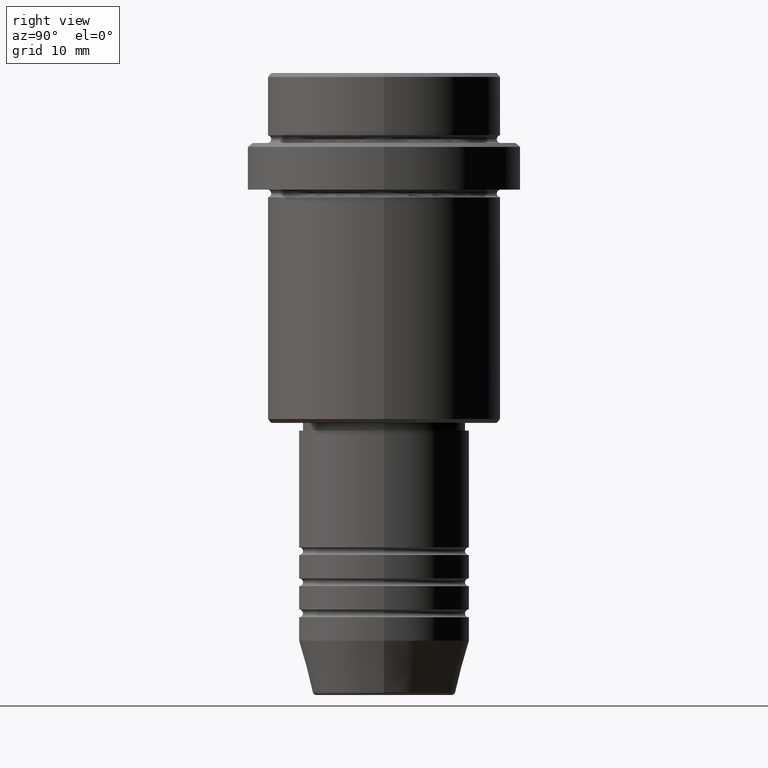
[diagram: clean part render]
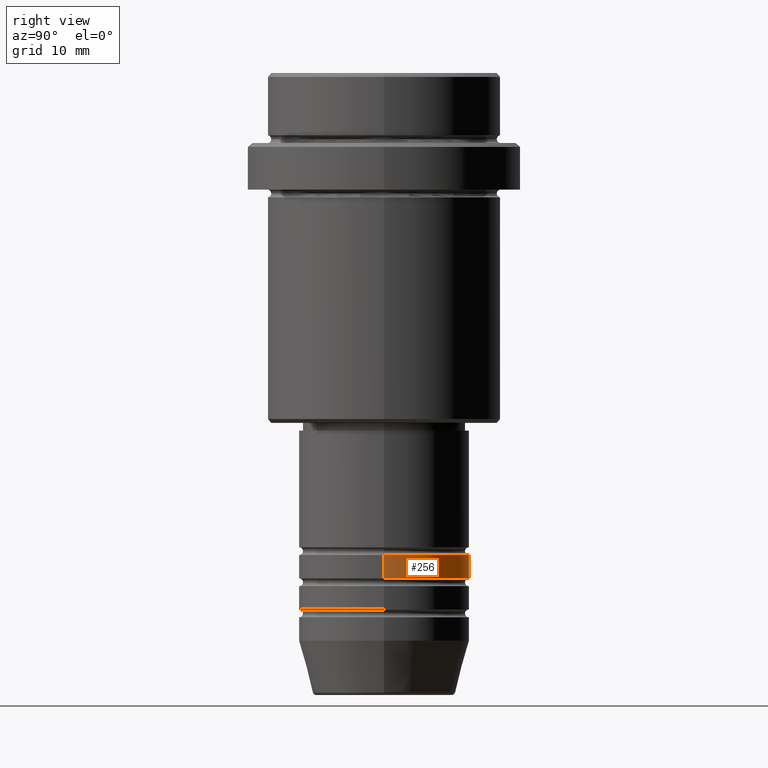
[diagram: same view with one face highlighted and labeled with its STEP entity id]
A machine part, right view. The second image highlights one B-rep face of the part: STEP entity #256.
In plain terms, the highlighted cylindrical surface (partial cylindrical patch) has radius 11 mm, axis along (-0, -0, 1).
Its self-contained STEP definition (entity closure, byte-faithful):
#14 = CARTESIAN_POINT ( 'NONE',  ( -11.00000000000000000, 1.347111479062088405E-15, -64.99999999999988631 ) ) ;
#45 = DIRECTION ( 'NONE',  ( -0.000000000000000000, -0.000000000000000000, 1.000000000000000000 ) ) ;
#61 = CIRCLE ( 'NONE', #1136, 11.00000000000000000 ) ;
#78 = CARTESIAN_POINT ( 'NONE',  ( 0.000000000000000000, 0.000000000000000000, 0.000000000000000000 ) ) ;
#103 = EDGE_CURVE ( 'NONE', #1313, #1349, #796, .T. ) ;
#129 = CARTESIAN_POINT ( 'NONE',  ( -11.00000000000000000, 1.347111479062088405E-15, -61.99999999999989342 ) ) ;
#176 = VECTOR ( 'NONE', #515, 1000.000000000000000 ) ;
#181 = CARTESIAN_POINT ( 'NONE',  ( 0.000000000000000000, 0.000000000000000000, -64.99999999999988631 ) ) ;
#201 = AXIS2_PLACEMENT_3D ( 'NONE', #78, #629, #729 ) ;
#204 = CARTESIAN_POINT ( 'NONE',  ( -11.00000000000000000, 1.347111479062088405E-15, 0.000000000000000000 ) ) ;
#220 = EDGE_CURVE ( 'NONE', #681, #434, #61, .T. ) ;
#256 = ADVANCED_FACE ( 'NONE', ( #314 ), #1185, .T. ) ;
#257 = ORIENTED_EDGE ( 'NONE', *, *, #220, .T. ) ;
#269 = AXIS2_PLACEMENT_3D ( 'NONE', #1021, #593, #814 ) ;
#314 = FACE_OUTER_BOUND ( 'NONE', #448, .T. ) ;
#315 = VECTOR ( 'NONE', #45, 1000.000000000000000 ) ;
#358 = CARTESIAN_POINT ( 'NONE',  ( 11.00000000000000000, 0.000000000000000000, 0.000000000000000000 ) ) ;
#397 = DIRECTION ( 'NONE',  ( -0.000000000000000000, -0.000000000000000000, 1.000000000000000000 ) ) ;
#421 = LINE ( 'NONE', #204, #176 ) ;
#434 = VERTEX_POINT ( 'NONE', #14 ) ;
#448 = EDGE_LOOP ( 'NONE', ( #257, #594, #525, #847 ) ) ;
#515 = DIRECTION ( 'NONE',  ( -0.000000000000000000, -0.000000000000000000, 1.000000000000000000 ) ) ;
#525 = ORIENTED_EDGE ( 'NONE', *, *, #103, .F. ) ;
#593 = DIRECTION ( 'NONE',  ( -0.000000000000000000, -0.000000000000000000, 1.000000000000000000 ) ) ;
#594 = ORIENTED_EDGE ( 'NONE', *, *, #680, .T. ) ;
#629 = DIRECTION ( 'NONE',  ( -0.000000000000000000, -0.000000000000000000, 1.000000000000000000 ) ) ;
#680 = EDGE_CURVE ( 'NONE', #434, #1349, #421, .T. ) ;
#681 = VERTEX_POINT ( 'NONE', #1376 ) ;
#729 = DIRECTION ( 'NONE',  ( 1.000000000000000000, 0.000000000000000000, 0.000000000000000000 ) ) ;
#796 = CIRCLE ( 'NONE', #269, 11.00000000000000000 ) ;
#814 = DIRECTION ( 'NONE',  ( 1.000000000000000000, 0.000000000000000000, 0.000000000000000000 ) ) ;
#847 = ORIENTED_EDGE ( 'NONE', *, *, #1054, .F. ) ;
#1021 = CARTESIAN_POINT ( 'NONE',  ( 0.000000000000000000, 0.000000000000000000, -61.99999999999989342 ) ) ;
#1026 = LINE ( 'NONE', #358, #315 ) ;
#1054 = EDGE_CURVE ( 'NONE', #681, #1313, #1026, .T. ) ;
#1136 = AXIS2_PLACEMENT_3D ( 'NONE', #181, #397, #1399 ) ;
#1185 = CYLINDRICAL_SURFACE ( 'NONE', #201, 11.00000000000000000 ) ;
#1313 = VERTEX_POINT ( 'NONE', #1416 ) ;
#1349 = VERTEX_POINT ( 'NONE', #129 ) ;
#1376 = CARTESIAN_POINT ( 'NONE',  ( 11.00000000000000000, 0.000000000000000000, -64.99999999999988631 ) ) ;
#1399 = DIRECTION ( 'NONE',  ( 1.000000000000000000, 0.000000000000000000, 0.000000000000000000 ) ) ;
#1416 = CARTESIAN_POINT ( 'NONE',  ( 11.00000000000000000, 0.000000000000000000, -61.99999999999989342 ) ) ;